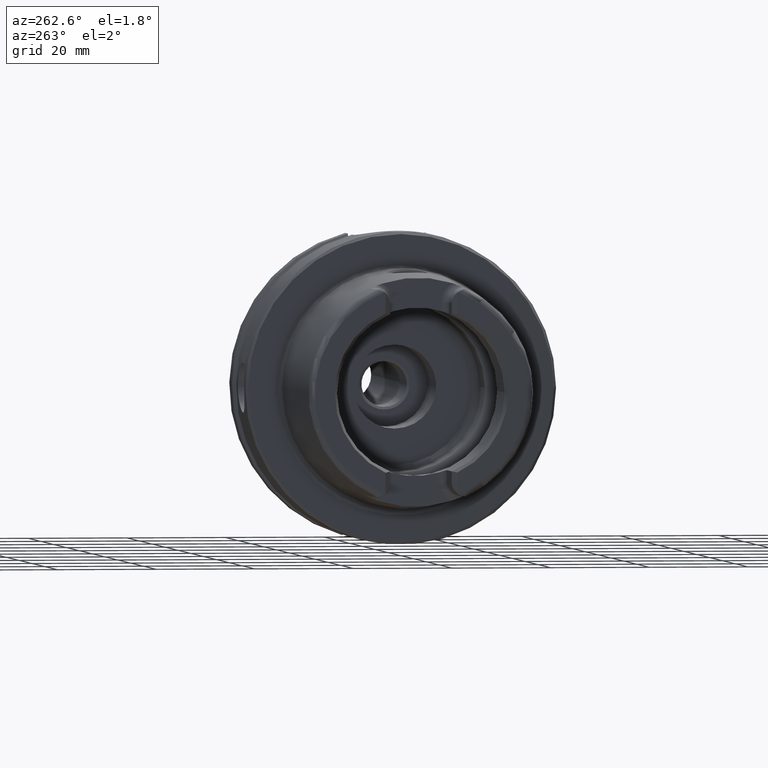
[diagram: clean part render]
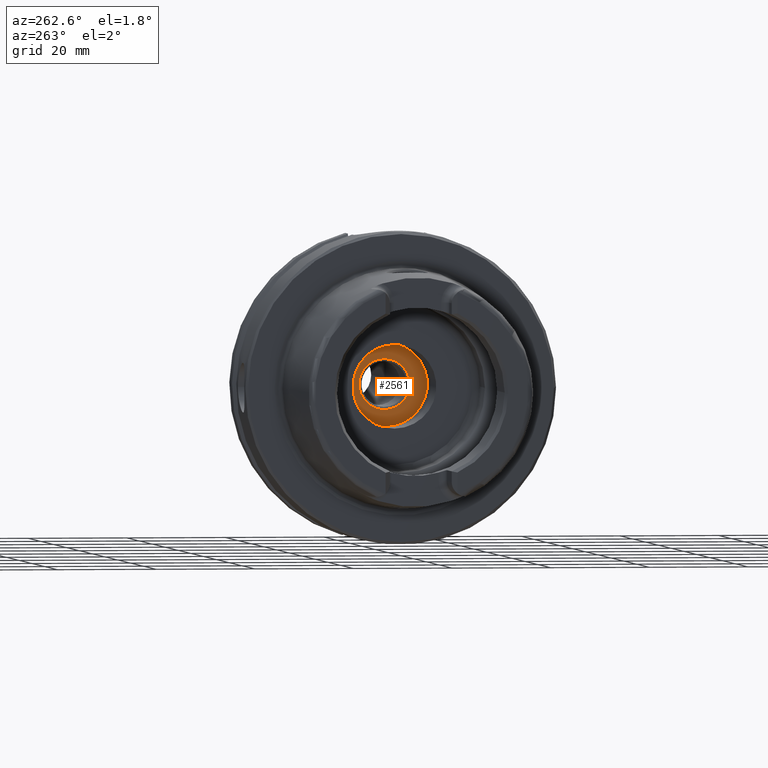
[diagram: same view with one face highlighted and labeled with its STEP entity id]
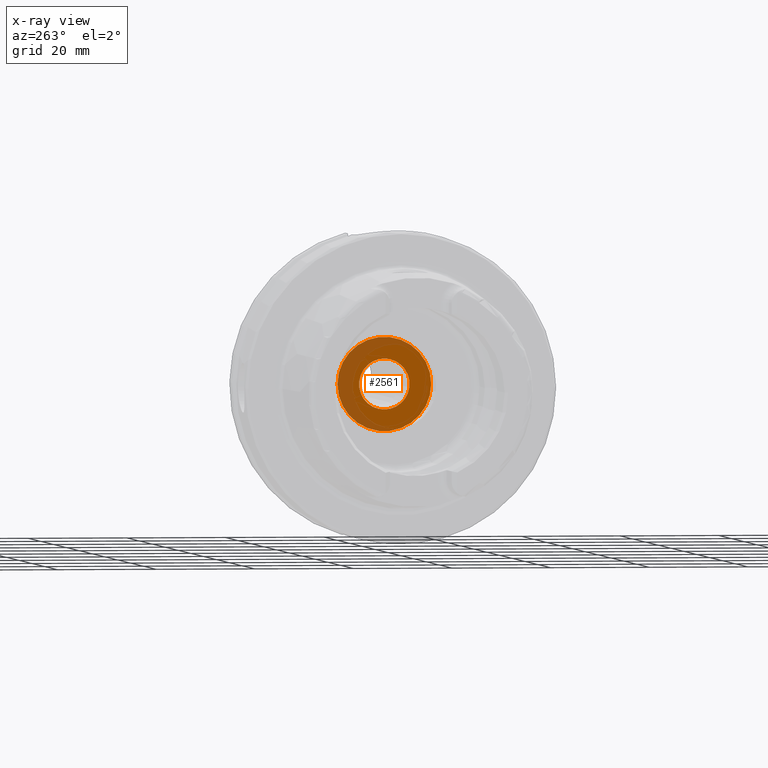
[diagram: x-ray of the same camera — body ghosted, the highlighted face saturated]
A machine part, auxiliary view. The second image highlights one B-rep face of the part: STEP entity #2561.
The next image is the same camera in x-ray: the body ghosted, the highlighted face saturated — about 36% of this face is hidden behind the body in this view.
In plain terms, the highlighted planar face has unit normal (1, 0, 0).
Its self-contained STEP definition (entity closure, byte-faithful):
#131=FACE_BOUND('',#344,.T.);
#142=PLANE('',#2726);
#207=FACE_OUTER_BOUND('',#343,.T.);
#343=EDGE_LOOP('',(#1687,#1688));
#344=EDGE_LOOP('',(#1689));
#725=CIRCLE('',#2720,5.13017503529897);
#730=CIRCLE('',#2727,9.5);
#731=CIRCLE('',#2728,9.5);
#953=VERTEX_POINT('',#3955);
#958=VERTEX_POINT('',#3969);
#959=VERTEX_POINT('',#3970);
#1250=EDGE_CURVE('',#953,#953,#725,.T.);
#1257=EDGE_CURVE('',#958,#959,#730,.T.);
#1258=EDGE_CURVE('',#959,#958,#731,.T.);
#1687=ORIENTED_EDGE('',*,*,#1257,.T.);
#1688=ORIENTED_EDGE('',*,*,#1258,.T.);
#1689=ORIENTED_EDGE('',*,*,#1250,.T.);
#2561=ADVANCED_FACE('',(#207,#131),#142,.F.);
#2720=AXIS2_PLACEMENT_3D('',#3956,#3099,#3100);
#2726=AXIS2_PLACEMENT_3D('',#3968,#3113,#3114);
#2727=AXIS2_PLACEMENT_3D('',#3971,#3115,#3116);
#2728=AXIS2_PLACEMENT_3D('',#3972,#3117,#3118);
#3099=DIRECTION('center_axis',(1.,0.,0.));
#3100=DIRECTION('ref_axis',(0.,0.,1.));
#3113=DIRECTION('center_axis',(1.,0.,0.));
#3114=DIRECTION('ref_axis',(0.,0.,-1.));
#3115=DIRECTION('center_axis',(-1.,0.,0.));
#3116=DIRECTION('ref_axis',(0.,0.,1.));
#3117=DIRECTION('center_axis',(-1.,0.,0.));
#3118=DIRECTION('ref_axis',(0.,0.,1.));
#3955=CARTESIAN_POINT('',(26.,6.28265243604454E-16,-5.13017503529897));
#3956=CARTESIAN_POINT('Origin',(26.,0.,0.));
#3968=CARTESIAN_POINT('Origin',(26.,9.5,0.));
#3969=CARTESIAN_POINT('',(26.,9.5,0.));
#3970=CARTESIAN_POINT('',(26.,-9.5,1.16341445918999E-15));
#3971=CARTESIAN_POINT('Origin',(26.,0.,0.));
#3972=CARTESIAN_POINT('Origin',(26.,0.,0.));